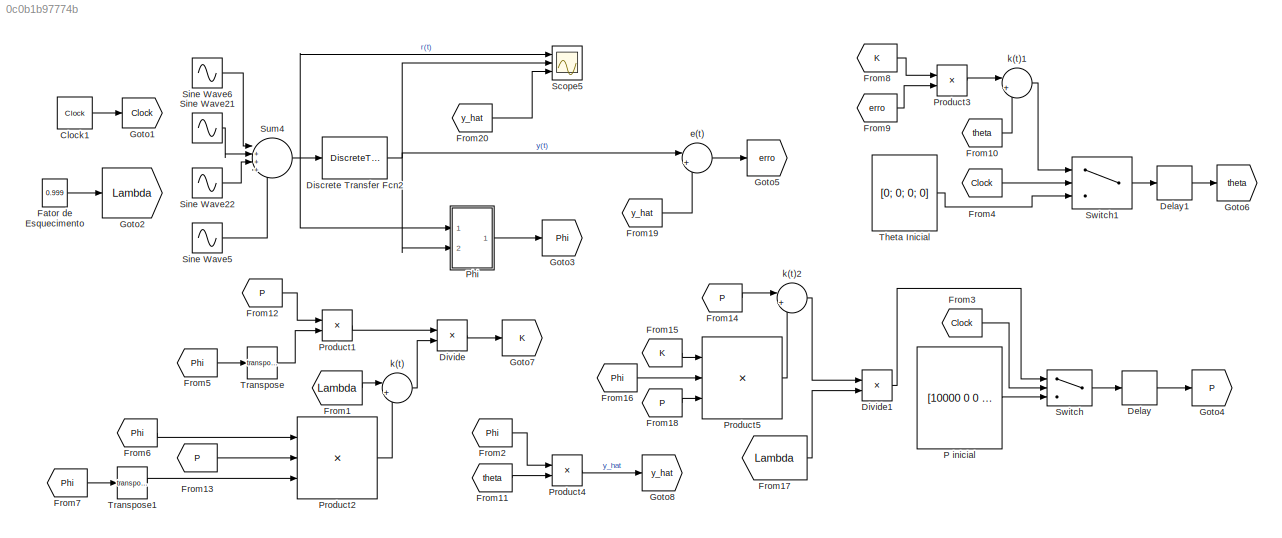
MODEL slx_0c0b1b97774b
KIND model
CONFIG AbsTol = auto
CONFIG EnableMultiTasking = off
CONFIG FixedStep = 0.01
CONFIG MaxStep = auto
CONFIG MinStep = auto
CONFIG RelTol = 1e-3
CONFIG SampleTimeConstraint = Unconstrained
CONFIG Solver = FixedStepAuto
CONFIG SolverName = FixedStepAuto
CONFIG StartTime = 0.0
CONFIG StopTime = 100
BLOCK [Clock] Clock1
BLOCK [Delay] Delay
  DelayLength = 1
  InitialCondition = 0
  InputPortMap = u0
  Ports = [1, 1]
BLOCK [Delay] Delay1
  DelayLength = 1
  InitialCondition = 0
  InputPortMap = u0
  Ports = [1, 1]
BLOCK [DiscreteTransferFcn] Discrete Transfer Fcn2
  Denominator = [1, -1.97024777104576, 0.970444805674597]
  InputPortMap = u0
  Numerator = [4.92586572090045e-05, 9.85173144180090e-05, 4.92586572090045e-05]
  Ports = [1, 1]
BLOCK [Product] Divide
  InputSameDT = off
  Inputs = */
  OutDataTypeStr = Inherit: Inherit via internal rule
  Ports = [2, 1]
  RndMeth = Floor
  SaturateOnIntegerOverflow = off
BLOCK [Product] Divide1
  InputSameDT = off
  Inputs = */
  OutDataTypeStr = Inherit: Inherit via internal rule
  Ports = [2, 1]
  RndMeth = Floor
  SaturateOnIntegerOverflow = off
BLOCK [Constant] Fator de Esquecimento 
  Value = 0.999
BLOCK [From] From1
  GotoTag = Lambda
BLOCK [From] From10
  GotoTag = theta
BLOCK [From] From11
  GotoTag = theta
BLOCK [From] From12
  GotoTag = P
BLOCK [From] From13
  GotoTag = P
BLOCK [From] From14
  GotoTag = P
BLOCK [From] From15
  GotoTag = K
BLOCK [From] From16
  GotoTag = Phi
BLOCK [From] From17
  GotoTag = Lambda
BLOCK [From] From18
  GotoTag = P
BLOCK [From] From19
  GotoTag = y_hat
BLOCK [From] From2
  GotoTag = Phi
BLOCK [From] From20
  GotoTag = y_hat
BLOCK [From] From3
  GotoTag = Clock
BLOCK [From] From4
  GotoTag = Clock
BLOCK [From] From5
  GotoTag = Phi
BLOCK [From] From6
  GotoTag = Phi
BLOCK [From] From7
  GotoTag = Phi
BLOCK [From] From8
  GotoTag = K
BLOCK [From] From9
  GotoTag = erro
BLOCK [Goto] Goto1
  GotoTag = Clock
BLOCK [Goto] Goto2
  GotoTag = Lambda
BLOCK [Goto] Goto3
  GotoTag = Phi
BLOCK [Goto] Goto4
  GotoTag = P
BLOCK [Goto] Goto5
  GotoTag = erro
BLOCK [Goto] Goto6
  GotoTag = theta
BLOCK [Goto] Goto7
  GotoTag = K
BLOCK [Goto] Goto8
  GotoTag = y_hat
BLOCK [Constant] P inicial
  Value = [10000 0 0 0; 0 10000 0 0; 0 0 10000 0; 0 0 0 10000]
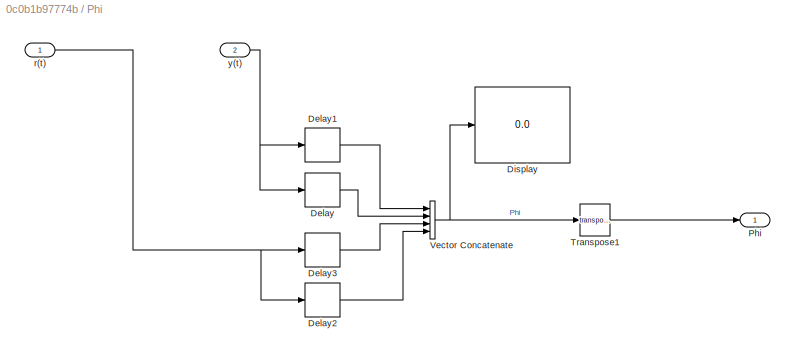
BLOCK [SubSystem] Phi
  Ports = [2, 1]
  RequestExecContextInheritance = off
BLOCK [Delay] Phi/Delay
  InputPortMap = u0
  Ports = [1, 1]
BLOCK [Delay] Phi/Delay1
  DelayLength = 1
  InputPortMap = u0
  Ports = [1, 1]
BLOCK [Delay] Phi/Delay2
  InputPortMap = u0
  Ports = [1, 1]
BLOCK [Delay] Phi/Delay3
  DelayLength = 1
  InputPortMap = u0
  Ports = [1, 1]
BLOCK [Display] Phi/Display
  Decimation = 1
  Ports = [1]
BLOCK [Outport] Phi/Phi
  IconDisplay = Port number
BLOCK [Math] Phi/Transpose1
  Operator = transpose
  Ports = [1, 1]
BLOCK [Concatenate] Phi/Vector Concatenate
  NumInputs = 4
  Ports = [4, 1]
BLOCK [Inport] Phi/r(t)
  IconDisplay = Port number
BLOCK [Inport] Phi/y(t)
  IconDisplay = Port number
  Port = 2
BLOCK [Product] Product1
  InputSameDT = off
  Multiplication = Matrix(*)
  OutDataTypeStr = Inherit: Inherit via internal rule
  Ports = [2, 1]
  RndMeth = Floor
  SaturateOnIntegerOverflow = off
BLOCK [Product] Product2
  InputSameDT = off
  Inputs = 3
  Multiplication = Matrix(*)
  OutDataTypeStr = Inherit: Inherit via internal rule
  Ports = [3, 1]
  RndMeth = Floor
  SaturateOnIntegerOverflow = off
BLOCK [Product] Product3
  InputSameDT = off
  Multiplication = Matrix(*)
  OutDataTypeStr = Inherit: Inherit via internal rule
  Ports = [2, 1]
  RndMeth = Floor
  SaturateOnIntegerOverflow = off
BLOCK [Product] Product4
  InputSameDT = off
  Multiplication = Matrix(*)
  OutDataTypeStr = Inherit: Inherit via internal rule
  Ports = [2, 1]
  RndMeth = Floor
  SaturateOnIntegerOverflow = off
BLOCK [Product] Product5
  InputSameDT = off
  Inputs = 3
  Multiplication = Matrix(*)
  OutDataTypeStr = Inherit: Inherit via internal rule
  Ports = [3, 1]
  RndMeth = Floor
  SaturateOnIntegerOverflow = off
BLOCK [Scope] Scope5
  Floating = off
  NumInputPorts = 3
  Ports = [3]
  ScopeSpecificationString = Simulink.scopes.TimeScopeBlockCfg('CurrentConfiguration', extmgr.ConfigurationSet(extmgr.Configuration('Core','General UI',true,'FigureColor',[0.156862745098039 0.156862745098039 0.156862745098039]),extmgr.Configuration('Core','Source UI',true),extmgr.Configuration('Sources','WiredSimulink',true,'DataLoggingVariableName','ScopeData1','DataLoggingSaveFormat','StructureWithTime','DataLoggingDecimati...<+3184ch>
BLOCK [Sin] Sine Wave21
  Frequency = 0.2
  Ports = [0, 1]
  SampleTime = 0
BLOCK [Sin] Sine Wave22
  Frequency = 0.4
  Ports = [0, 1]
  SampleTime = 0
BLOCK [Sin] Sine Wave5
  Frequency = 0.8
  Ports = [0, 1]
  SampleTime = 0
BLOCK [Sin] Sine Wave6
  Frequency = 0.1
  Ports = [0, 1]
  SampleTime = 0
BLOCK [Sum] Sum4
  IconShape = round
  InputSameDT = off
  Inputs = |++++
  OutDataTypeStr = Inherit: Inherit via internal rule
  Ports = [4, 1]
  SaturateOnIntegerOverflow = off
BLOCK [Switch] Switch
  Criteria = u2 > Threshold
  InputSameDT = off
  SaturateOnIntegerOverflow = off
BLOCK [Switch] Switch1
  Criteria = u2 > Threshold
  InputSameDT = off
  SaturateOnIntegerOverflow = off
BLOCK [Constant] Theta Inicial 
  Value = [0; 0; 0; 0]
BLOCK [Math] Transpose
  Operator = transpose
  Ports = [1, 1]
BLOCK [Math] Transpose1
  Operator = transpose
  Ports = [1, 1]
BLOCK [Sum] e(t)
  IconShape = round
  InputSameDT = off
  Inputs = |+-
  OutDataTypeStr = Inherit: Inherit via internal rule
  Ports = [2, 1]
  SaturateOnIntegerOverflow = off
BLOCK [Sum] k(t)
  IconShape = round
  InputSameDT = off
  Inputs = |++
  OutDataTypeStr = Inherit: Inherit via internal rule
  Ports = [2, 1]
  SaturateOnIntegerOverflow = off
BLOCK [Sum] k(t)1
  IconShape = round
  InputSameDT = off
  Inputs = |++
  OutDataTypeStr = Inherit: Inherit via internal rule
  Ports = [2, 1]
  SaturateOnIntegerOverflow = off
BLOCK [Sum] k(t)2
  IconShape = round
  InputSameDT = off
  Inputs = |+-
  OutDataTypeStr = Inherit: Inherit via internal rule
  Ports = [2, 1]
  SaturateOnIntegerOverflow = off
LINE Clock1:1 -> Goto1:1
LINE Delay1:1 -> Goto6:1
LINE Delay:1 -> Goto4:1
NET Discrete Transfer Fcn2:1 -> Phi:2, Scope5:2, e(t):1
LINE Divide1:1 -> Switch:1
LINE Divide:1 -> Goto7:1
LINE Fator de Esquecimento :1 -> Goto2:1
LINE From10:1 -> k(t)1:2
LINE From11:1 -> Product4:2
LINE From12:1 -> Product1:1
LINE From13:1 -> Product2:2
LINE From14:1 -> k(t)2:1
LINE From15:1 -> Product5:1
LINE From16:1 -> Product5:2
LINE From17:1 -> Divide1:2
LINE From18:1 -> Product5:3
LINE From19:1 -> e(t):2
LINE From1:1 -> k(t):1
LINE From20:1 -> Scope5:3
LINE From2:1 -> Product4:1
LINE From3:1 -> Switch:2
LINE From4:1 -> Switch1:2
LINE From5:1 -> Transpose:1
LINE From6:1 -> Product2:1
LINE From7:1 -> Transpose1:1
LINE From8:1 -> Product3:1
LINE From9:1 -> Product3:2
LINE P inicial:1 -> Switch:3
LINE Phi/Delay1:1 -> Phi/Vector Concatenate:1
LINE Phi/Delay2:1 -> Phi/Vector Concatenate:4
LINE Phi/Delay3:1 -> Phi/Vector Concatenate:3
LINE Phi/Delay:1 -> Phi/Vector Concatenate:2
LINE Phi/Transpose1:1 -> Phi/Phi:1
NET Phi/Vector Concatenate:1 -> Phi/Display:1, Phi/Transpose1:1
NET Phi/r(t):1 -> Phi/Delay2:1, Phi/Delay3:1
NET Phi/y(t):1 -> Phi/Delay1:1, Phi/Delay:1
LINE Phi:1 -> Goto3:1
LINE Product1:1 -> Divide:1
LINE Product2:1 -> k(t):2
LINE Product3:1 -> k(t)1:1
LINE Product4:1 -> Goto8:1
LINE Product5:1 -> k(t)2:2
LINE Sine Wave21:1 -> Sum4:2
LINE Sine Wave22:1 -> Sum4:3
LINE Sine Wave5:1 -> Sum4:4
LINE Sine Wave6:1 -> Sum4:1
NET Sum4:1 -> Discrete Transfer Fcn2:1, Phi:1, Scope5:1
LINE Switch1:1 -> Delay1:1
LINE Switch:1 -> Delay:1
LINE Theta Inicial :1 -> Switch1:3
LINE Transpose1:1 -> Product2:3
LINE Transpose:1 -> Product1:2
LINE e(t):1 -> Goto5:1
LINE k(t)1:1 -> Switch1:1
LINE k(t)2:1 -> Divide1:1
LINE k(t):1 -> Divide:2
note: NET lines group one-source signal fan-out (src -> all destinations, sorted); 1:1 wires keep LINE
